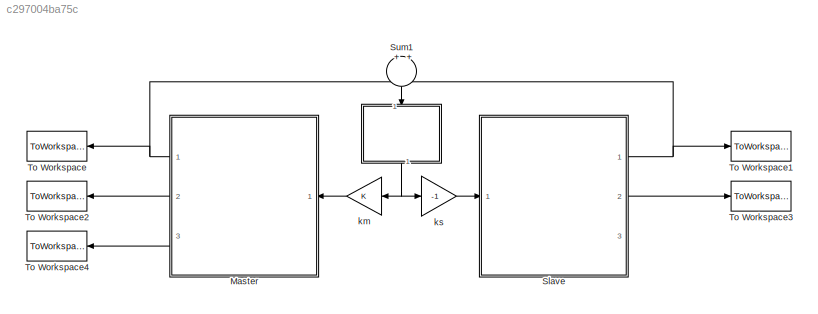
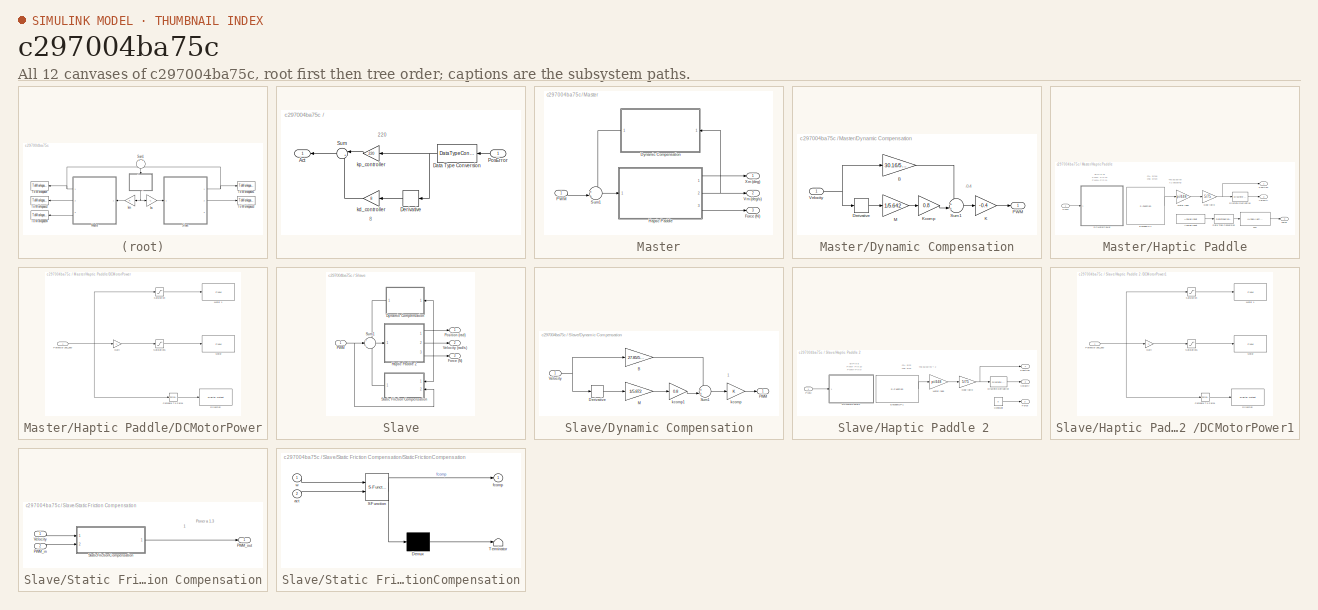
[diagram: thumbnail index - all 12 canvases of the model, root first then tree order]
MODEL slx_c297004ba75c
KIND model
CONFIG AbsTol = auto
CONFIG EnableMultiTasking = on
CONFIG FixedStep = 0.005
CONFIG MaxStep = auto
CONFIG MinStep = auto
CONFIG RelTol = 1e-3
CONFIG SampleTimeConstraint = Unconstrained
CONFIG Solver = FixedStepAuto
CONFIG SolverName = FixedStepAuto
CONFIG StartTime = 0.0
CONFIG StopTime = 5
BLOCK [SubSystem]  
  Ports = [1, 1]
  RequestExecContextInheritance = off
  Variant = off
BLOCK [Outport]  /Act
  IconDisplay = Port number
BLOCK [DataTypeConversion]  /Data Type Conversion
  RndMeth = Floor
  SaturateOnIntegerOverflow = off
BLOCK [Derivative]  /Derivative
BLOCK [Inport]  /PosError
  IconDisplay = Port number
BLOCK [Sum]  /Sum
  IconShape = round
  InputSameDT = off
  Inputs = |++
  OutDataTypeStr = Inherit: Inherit via internal rule
  Ports = [2, 1]
  SaturateOnIntegerOverflow = off
BLOCK [Gain]  /kd_controller
  Gain = 8
  OutDataTypeStr = Inherit: Inherit via internal rule
  ParamDataTypeStr = Inherit: Inherit via internal rule
  SaturateOnIntegerOverflow = off
BLOCK [Gain]  /kp_controller
  Gain = 220
  OutDataTypeStr = Inherit: Inherit via internal rule
  ParamDataTypeStr = Inherit: Inherit via internal rule
  SaturateOnIntegerOverflow = off
BLOCK [SubSystem] Master
  Ports = [1, 3]
  RequestExecContextInheritance = off
  Variant = off
BLOCK [SubSystem] Master/Dynamic Compensation
  Ports = [1, 1]
  RequestExecContextInheritance = off
  Variant = off
BLOCK [Gain] Master/Dynamic Compensation/B
  Gain = 30.16/5.642
  OutDataTypeStr = double
  ParamDataTypeStr = Inherit: Inherit via internal rule
  SaturateOnIntegerOverflow = off
BLOCK [Derivative] Master/Dynamic Compensation/Derivative
BLOCK [Gain] Master/Dynamic Compensation/K
  Gain = -0.4
  OutDataTypeStr = int16
  ParamDataTypeStr = Inherit: Inherit via internal rule
  SaturateOnIntegerOverflow = off
BLOCK [Gain] Master/Dynamic Compensation/Kcomp
  Gain = 0.8
  OutDataTypeStr = int16
  ParamDataTypeStr = Inherit: Inherit via internal rule
  SaturateOnIntegerOverflow = off
BLOCK [Gain] Master/Dynamic Compensation/M
  Gain = 1/5.642
  OutDataTypeStr = double
  ParamDataTypeStr = Inherit: Inherit via internal rule
  SaturateOnIntegerOverflow = off
BLOCK [Outport] Master/Dynamic Compensation/PWM
  IconDisplay = Port number
BLOCK [Sum] Master/Dynamic Compensation/Sum1
  IconShape = round
  InputSameDT = off
  Inputs = ++|
  OutDataTypeStr = Inherit: Inherit via internal rule
  Ports = [2, 1]
  SaturateOnIntegerOverflow = off
BLOCK [Inport] Master/Dynamic Compensation/Velocity
  IconDisplay = Port number
BLOCK [Outport] Master/Force (N)
  IconDisplay = Port number
  Port = 3
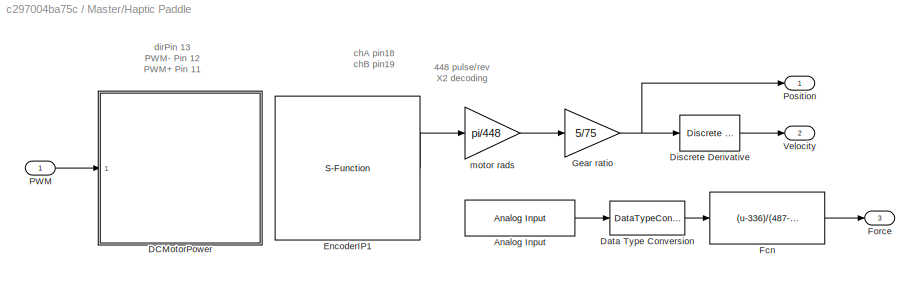
BLOCK [SubSystem] Master/Haptic Paddle
  Ports = [1, 3]
  RequestExecContextInheritance = off
  Variant = off
BLOCK [Reference] Master/Haptic Paddle/Analog Input  REF=arduinolib/Analog Input
  Ports = [0, 1]
  SourceBlock = arduinolib/Analog Input
  SourceProductBaseCode = ARDUINO
  SourceProductName = Simulink Support Package for Arduino Hardware
  SourceType = Arduino Analog Input
BLOCK [SubSystem] Master/Haptic Paddle/DCMotorPower
  Ports = [1]
  RTWFcnNameOpts = Use subsystem name
  RTWFileNameOpts = Use function name
  RTWSystemCode = Reusable function
  RequestExecContextInheritance = off
  Variant = off
BLOCK [Reference] Master/Haptic Paddle/DCMotorPower/Compare To Zero1  REF=simulink/Logic and Bit
Operations/Compare
To Zero
  Ports = [1, 1]
  SourceBlock = simulink/Logic and Bit\nOperations/Compare\nTo Zero
  SourceProductBaseCode = SL
  SourceProductName = Simulink
  SourceType = Compare To Zero
BLOCK [Reference] Master/Haptic Paddle/DCMotorPower/Direccion  REF=arduinolib/Digital Output
  Ports = [1]
  SourceBlock = arduinolib/Digital Output
  SourceProductBaseCode = ARDUINO
  SourceProductName = Simulink Support Package for Arduino Hardware
  SourceType = Arduino Digital Output
BLOCK [Gain] Master/Haptic Paddle/DCMotorPower/Gain
  Gain = -1
  OutDataTypeStr = Inherit: Inherit via internal rule
  ParamDataTypeStr = Inherit: Inherit via internal rule
  SaturateOnIntegerOverflow = off
BLOCK [Reference] Master/Haptic Paddle/DCMotorPower/Motor  REF=arduinolib/PWM
  Ports = [1]
  SourceBlock = arduinolib/PWM
  SourceProductBaseCode = ARDUINO
  SourceProductName = Simulink Support Package for Arduino Hardware
  SourceType = Arduino PWM
BLOCK [Reference] Master/Haptic Paddle/DCMotorPower/Motor 1  REF=arduinolib/PWM
  Ports = [1]
  SourceBlock = arduinolib/PWM
  SourceProductBaseCode = ARDUINO
  SourceProductName = Simulink Support Package for Arduino Hardware
  SourceType = Arduino PWM
BLOCK [Inport] Master/Haptic Paddle/DCMotorPower/Potencia(-255_255) 
  IconDisplay = Port number
  OutDataTypeStr = int16
  VarSizeSig = No
BLOCK [Saturate] Master/Haptic Paddle/DCMotorPower/Saturation
  InputPortMap = u0
  LowerLimit = 0
  Ports = [1, 1]
  UpperLimit = 255
BLOCK [Saturate] Master/Haptic Paddle/DCMotorPower/Saturation1
  InputPortMap = u0
  LowerLimit = 0
  Ports = [1, 1]
  UpperLimit = 255
BLOCK [DataTypeConversion] Master/Haptic Paddle/Data Type Conversion
  RndMeth = Floor
  SaturateOnIntegerOverflow = off
BLOCK [Reference] Master/Haptic Paddle/Discrete Derivative  REF=simulink/Discrete/Discrete Derivative
  Ports = [1, 1]
  SourceBlock = simulink/Discrete/Discrete Derivative
  SourceProductBaseCode = SL
  SourceProductName = Simulink
  SourceType = Discrete Derivative
BLOCK [S-Function] Master/Haptic Paddle/EncoderIP1
  CopyFcn = set_param(gcbh,'LinkStatus','none')
  EnableBusSupport = off
  FunctionName = encoder_code2
  InitFcn = try, set_param(gcb,'FunctionName','encoder_code2'), end
  OpenFcn = sfunctionwizard(gcbh)
  Parameters = uint8(1),uint8(18),uint8(19)
  Ports = [0, 1]
  PreSaveFcn = try, set_param(gcb,'FunctionName','encoder_code2'), end
  SFcnIsStateOwnerBlock = off
  SFunctionDeploymentMode = off
  SFunctionModules = encoder_code2_wrapper
BLOCK [Fcn] Master/Haptic Paddle/Fcn
  Expr = (u-336)/(487-336)*1.991
BLOCK [Outport] Master/Haptic Paddle/Force
  IconDisplay = Port number
  Port = 3
BLOCK [Gain] Master/Haptic Paddle/Gear ratio 
  Gain = 5/75
  OutDataTypeStr = Inherit: Inherit via internal rule
  ParamDataTypeStr = Inherit: Inherit via internal rule
  SaturateOnIntegerOverflow = off
BLOCK [Inport] Master/Haptic Paddle/PWM
  IconDisplay = Port number
BLOCK [Outport] Master/Haptic Paddle/Position
  IconDisplay = Port number
BLOCK [Outport] Master/Haptic Paddle/Velocity
  IconDisplay = Port number
  Port = 2
BLOCK [Gain] Master/Haptic Paddle/motor rads
  Gain = pi/448
  OutDataTypeStr = Inherit: Inherit via internal rule
  ParamDataTypeStr = Inherit: Inherit via internal rule
  SaturateOnIntegerOverflow = off
BLOCK [Inport] Master/PWM
  IconDisplay = Port number
  OutDataTypeStr = int16
BLOCK [Sum] Master/Sum1
  IconShape = round
  InputSameDT = off
  Inputs = ++|
  OutDataTypeStr = Inherit: Inherit via internal rule
  Ports = [2, 1]
  SaturateOnIntegerOverflow = off
BLOCK [Outport] Master/Vm (deg//s)
  IconDisplay = Port number
  Port = 2
BLOCK [Outport] Master/Xm (deg)
  IconDisplay = Port number
BLOCK [SubSystem] Slave
  Ports = [1, 3]
  RequestExecContextInheritance = off
  Variant = off
BLOCK [SubSystem] Slave/Dynamic Compensation
  Ports = [1, 1]
  RequestExecContextInheritance = off
  Variant = off
BLOCK [Gain] Slave/Dynamic Compensation/B
  Gain = 27.85/5.872
  OutDataTypeStr = double
  ParamDataTypeStr = Inherit: Inherit via internal rule
  SaturateOnIntegerOverflow = off
BLOCK [Derivative] Slave/Dynamic Compensation/Derivative
BLOCK [Gain] Slave/Dynamic Compensation/M
  Gain = 1/5.872
  OutDataTypeStr = double
  ParamDataTypeStr = Inherit: Inherit via internal rule
  SaturateOnIntegerOverflow = off
BLOCK [Outport] Slave/Dynamic Compensation/PWM 
  IconDisplay = Port number
BLOCK [Sum] Slave/Dynamic Compensation/Sum1
  IconShape = round
  InputSameDT = off
  Inputs = ++|
  OutDataTypeStr = Inherit: Inherit via internal rule
  Ports = [2, 1]
  SaturateOnIntegerOverflow = off
BLOCK [Inport] Slave/Dynamic Compensation/Velocity
  IconDisplay = Port number
BLOCK [Gain] Slave/Dynamic Compensation/kcomp
  OutDataTypeStr = int16
  ParamDataTypeStr = Inherit: Inherit via internal rule
  SaturateOnIntegerOverflow = off
BLOCK [Gain] Slave/Dynamic Compensation/kcomp1
  Gain = 0.8
  OutDataTypeStr = int16
  ParamDataTypeStr = Inherit: Inherit via internal rule
  SaturateOnIntegerOverflow = off
BLOCK [Outport] Slave/Force (N)
  IconDisplay = Port number
  Port = 3
BLOCK [SubSystem] Slave/Haptic Paddle 2 
  Ports = [1, 3]
  RequestExecContextInheritance = off
  Variant = off
BLOCK [Constant] Slave/Haptic Paddle 2 /Constant
  Value = 0
BLOCK [SubSystem] Slave/Haptic Paddle 2 /DCMotorPower1
  Ports = [1]
  RTWFcnNameOpts = Use subsystem name
  RTWFileNameOpts = Use function name
  RTWSystemCode = Reusable function
  RequestExecContextInheritance = off
  Variant = off
BLOCK [Reference] Slave/Haptic Paddle 2 /DCMotorPower1/Compare To Zero1  REF=simulink/Logic and Bit
Operations/Compare
To Zero
  Ports = [1, 1]
  SourceBlock = simulink/Logic and Bit\nOperations/Compare\nTo Zero
  SourceProductBaseCode = SL
  SourceProductName = Simulink
  SourceType = Compare To Zero
BLOCK [Reference] Slave/Haptic Paddle 2 /DCMotorPower1/Direccion  REF=arduinolib/Digital Output
  Ports = [1]
  SourceBlock = arduinolib/Digital Output
  SourceProductBaseCode = ARDUINO
  SourceProductName = Simulink Support Package for Arduino Hardware
  SourceType = Arduino Digital Output
BLOCK [Gain] Slave/Haptic Paddle 2 /DCMotorPower1/Gain
  Gain = -1
  OutDataTypeStr = Inherit: Inherit via internal rule
  ParamDataTypeStr = Inherit: Inherit via internal rule
  SaturateOnIntegerOverflow = off
BLOCK [Reference] Slave/Haptic Paddle 2 /DCMotorPower1/Motor  REF=arduinolib/PWM
  Ports = [1]
  SourceBlock = arduinolib/PWM
  SourceProductBaseCode = ARDUINO
  SourceProductName = Simulink Support Package for Arduino Hardware
  SourceType = Arduino PWM
BLOCK [Reference] Slave/Haptic Paddle 2 /DCMotorPower1/Motor 1  REF=arduinolib/PWM
  Ports = [1]
  SourceBlock = arduinolib/PWM
  SourceProductBaseCode = ARDUINO
  SourceProductName = Simulink Support Package for Arduino Hardware
  SourceType = Arduino PWM
BLOCK [Inport] Slave/Haptic Paddle 2 /DCMotorPower1/Potencia(-255_255) 
  IconDisplay = Port number
  OutDataTypeStr = int16
  VarSizeSig = No
BLOCK [Saturate] Slave/Haptic Paddle 2 /DCMotorPower1/Saturation
  InputPortMap = u0
  LowerLimit = 0
  Ports = [1, 1]
  UpperLimit = 255
BLOCK [Saturate] Slave/Haptic Paddle 2 /DCMotorPower1/Saturation1
  InputPortMap = u0
  LowerLimit = 0
  Ports = [1, 1]
  UpperLimit = 255
BLOCK [Reference] Slave/Haptic Paddle 2 /Discrete Derivative  REF=simulink/Discrete/Discrete Derivative
  Ports = [1, 1]
  SourceBlock = simulink/Discrete/Discrete Derivative
  SourceProductBaseCode = SL
  SourceProductName = Simulink
  SourceType = Discrete Derivative
BLOCK [S-Function] Slave/Haptic Paddle 2 /EncoderDP1
  CopyFcn = set_param(gcbh,'LinkStatus','none')
  EnableBusSupport = off
  FunctionName = encoder_code2
  InitFcn = try, set_param(gcb,'FunctionName','encoder_code2'), end
  OpenFcn = sfunctionwizard(gcbh)
  Parameters = uint8(0),uint8(2),uint8(3)
  Ports = [0, 1]
  PreSaveFcn = try, set_param(gcb,'FunctionName','encoder_code2'), end
  SFcnIsStateOwnerBlock = off
  SFunctionDeploymentMode = off
  SFunctionModules = encoder_code2_wrapper
BLOCK [Outport] Slave/Haptic Paddle 2 /Force
  IconDisplay = Port number
  Port = 3
BLOCK [Gain] Slave/Haptic Paddle 2 /Gear ratio 
  Gain = 5/75
  OutDataTypeStr = Inherit: Inherit via internal rule
  ParamDataTypeStr = Inherit: Inherit via internal rule
  SaturateOnIntegerOverflow = off
BLOCK [Gain] Slave/Haptic Paddle 2 /Motor rads
  Gain = pi/448
  OutDataTypeStr = Inherit: Inherit via internal rule
  ParamDataTypeStr = Inherit: Inherit via internal rule
  SaturateOnIntegerOverflow = off
BLOCK [Inport] Slave/Haptic Paddle 2 /PWM 
  IconDisplay = Port number
BLOCK [Outport] Slave/Haptic Paddle 2 /Position
  IconDisplay = Port number
BLOCK [Outport] Slave/Haptic Paddle 2 /Velocity
  IconDisplay = Port number
  Port = 2
BLOCK [Inport] Slave/PWM
  IconDisplay = Port number
BLOCK [Outport] Slave/Position (rad)
  IconDisplay = Port number
BLOCK [SubSystem] Slave/Static Friction Compensation
  Ports = [2, 1]
  RequestExecContextInheritance = off
  Variant = off
BLOCK [Inport] Slave/Static Friction Compensation/PWM_in
  IconDisplay = Port number
  Port = 2
BLOCK [Outport] Slave/Static Friction Compensation/PWM_out
  IconDisplay = Port number
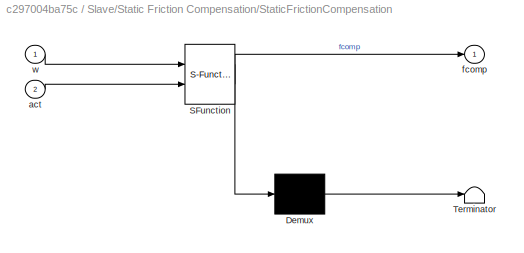
BLOCK [SubSystem] Slave/Static Friction Compensation/StaticFrictionCompensation
  ErrorFcn = Stateflow.Translate.translate
  PermitHierarchicalResolution = ExplicitOnly
  Ports = [2, 1]
  RequestExecContextInheritance = off
  SFBlockType = MATLAB Function
  TreatAsAtomicUnit = on
  Variant = off
BLOCK [Demux] Slave/Static Friction Compensation/StaticFrictionCompensation/ Demux 
  Outputs = 1
  Ports = [1, 1]
BLOCK [S-Function] Slave/Static Friction Compensation/StaticFrictionCompensation/ SFunction 
  EnableBusSupport = on
  FunctionName = sf_sfun
  PortCounts = [2 2]
  Ports = [2, 2]
  SFcnIsStateOwnerBlock = off
  SFunctionDeploymentMode = off
  Tag = Stateflow S-Function BilateralPaper 1
BLOCK [Terminator] Slave/Static Friction Compensation/StaticFrictionCompensation/ Terminator 
BLOCK [Inport] Slave/Static Friction Compensation/StaticFrictionCompensation/act
  IconDisplay = Port number
  Port = 2
BLOCK [Outport] Slave/Static Friction Compensation/StaticFrictionCompensation/fcomp
  IconDisplay = Port number
BLOCK [Inport] Slave/Static Friction Compensation/StaticFrictionCompensation/w
  IconDisplay = Port number
BLOCK [Inport] Slave/Static Friction Compensation/Velocity
  IconDisplay = Port number
BLOCK [Sum] Slave/Sum1
  IconShape = round
  InputSameDT = off
  Inputs = +|+|+
  OutDataTypeStr = Inherit: Inherit via internal rule
  Ports = [3, 1]
  SaturateOnIntegerOverflow = off
BLOCK [Outport] Slave/Velocity (rad//s)
  IconDisplay = Port number
  Port = 2
BLOCK [Sum] Sum1
  IconShape = round
  InputSameDT = off
  Inputs = +|+
  OutDataTypeStr = Inherit: Inherit via internal rule
  Ports = [2, 1]
  SaturateOnIntegerOverflow = off
BLOCK [ToWorkspace] To Workspace
  FixptAsFi = on
  MaxDataPoints = inf
  Ports = [1]
  SampleTime = -1
  Save2DSignal = 3-D array (concatenate along third dimension)
  SaveFormat = Structure With Time
  VariableName = Xm
BLOCK [ToWorkspace] To Workspace1
  FixptAsFi = on
  MaxDataPoints = inf
  Ports = [1]
  SampleTime = -1
  Save2DSignal = 3-D array (concatenate along third dimension)
  SaveFormat = Structure With Time
  VariableName = Xs
BLOCK [ToWorkspace] To Workspace2
  FixptAsFi = on
  MaxDataPoints = inf
  Ports = [1]
  SampleTime = -1
  Save2DSignal = 3-D array (concatenate along third dimension)
  SaveFormat = Structure With Time
  VariableName = Vm
BLOCK [ToWorkspace] To Workspace3
  FixptAsFi = on
  MaxDataPoints = inf
  Ports = [1]
  SampleTime = -1
  Save2DSignal = 3-D array (concatenate along third dimension)
  SaveFormat = Structure With Time
  VariableName = Vs
BLOCK [ToWorkspace] To Workspace4
  FixptAsFi = on
  MaxDataPoints = inf
  Ports = [1]
  SampleTime = -1
  Save2DSignal = 3-D array (concatenate along third dimension)
  SaveFormat = Structure With Time
  VariableName = Fm
BLOCK [Gain] km
  OutDataTypeStr = int16
  ParamDataTypeStr = Inherit: Inherit via internal rule
  SaturateOnIntegerOverflow = off
BLOCK [Gain] ks
  Gain = -1
  OutDataTypeStr = int16
  ParamDataTypeStr = Inherit: Inherit via internal rule
  SaturateOnIntegerOverflow = off
ANNOTATION  : 220
ANNOTATION  : 8
ANNOTATION Master/Dynamic Compensation: -0.4
ANNOTATION Master/Haptic Paddle: 448 pulse/rev X2 decoding
ANNOTATION Master/Haptic Paddle: chA pin18 chB pin19
ANNOTATION Master/Haptic Paddle: dirPin 13 PWM- Pin 12 PWM+ Pin 11
ANNOTATION Slave/Dynamic Compensation: 1
ANNOTATION Slave/Haptic Paddle 2 : 448 pulse/rev * 2
ANNOTATION Slave/Haptic Paddle 2 : chA pin2 chB pin3
ANNOTATION Slave/Haptic Paddle 2 : dirPin 8 PWM- Pin 10 PWM+ Pin 9
ANNOTATION Slave/Static Friction Compensation: 1
ANNOTATION Slave/Static Friction Compensation: Poner a 1.3
NET  /Data Type Conversion:1 ->  /Derivative:1,  /kp_controller:1
LINE  /Derivative:1 ->  /kd_controller:1
LINE  /PosError:1 ->  /Data Type Conversion:1
LINE  /Sum:1 ->  /Act:1
LINE  /kd_controller:1 ->  /Sum:2
LINE  /kp_controller:1 ->  /Sum:1
NET  :1 -> km:1, ks:1
LINE Master/Dynamic Compensation/B:1 -> Master/Dynamic Compensation/Sum1:1
LINE Master/Dynamic Compensation/Derivative:1 -> Master/Dynamic Compensation/M:1
LINE Master/Dynamic Compensation/K:1 -> Master/Dynamic Compensation/PWM:1
LINE Master/Dynamic Compensation/Kcomp:1 -> Master/Dynamic Compensation/Sum1:2
LINE Master/Dynamic Compensation/M:1 -> Master/Dynamic Compensation/Kcomp:1
LINE Master/Dynamic Compensation/Sum1:1 -> Master/Dynamic Compensation/K:1
NET Master/Dynamic Compensation/Velocity:1 -> Master/Dynamic Compensation/B:1, Master/Dynamic Compensation/Derivative:1
LINE Master/Dynamic Compensation:1 -> Master/Sum1:1
LINE Master/Haptic Paddle/Analog Input:1 -> Master/Haptic Paddle/Data Type Conversion:1
LINE Master/Haptic Paddle/DCMotorPower/Compare To Zero1:1 -> Master/Haptic Paddle/DCMotorPower/Direccion:1
LINE Master/Haptic Paddle/DCMotorPower/Gain:1 -> Master/Haptic Paddle/DCMotorPower/Saturation1:1
NET Master/Haptic Paddle/DCMotorPower/Potencia(-255_255) :1 -> Master/Haptic Paddle/DCMotorPower/Compare To Zero1:1, Master/Haptic Paddle/DCMotorPower/Gain:1, Master/Haptic Paddle/DCMotorPower/Saturation:1
LINE Master/Haptic Paddle/DCMotorPower/Saturation1:1 -> Master/Haptic Paddle/DCMotorPower/Motor:1
LINE Master/Haptic Paddle/DCMotorPower/Saturation:1 -> Master/Haptic Paddle/DCMotorPower/Motor 1:1
LINE Master/Haptic Paddle/Data Type Conversion:1 -> Master/Haptic Paddle/Fcn:1
LINE Master/Haptic Paddle/Discrete Derivative:1 -> Master/Haptic Paddle/Velocity:1
LINE Master/Haptic Paddle/EncoderIP1:1 -> Master/Haptic Paddle/motor rads:1
LINE Master/Haptic Paddle/Fcn:1 -> Master/Haptic Paddle/Force:1
NET Master/Haptic Paddle/Gear ratio :1 -> Master/Haptic Paddle/Discrete Derivative:1, Master/Haptic Paddle/Position:1
LINE Master/Haptic Paddle/PWM:1 -> Master/Haptic Paddle/DCMotorPower:1
LINE Master/Haptic Paddle/motor rads:1 -> Master/Haptic Paddle/Gear ratio :1
LINE Master/Haptic Paddle:1 -> Master/Xm (deg):1
NET Master/Haptic Paddle:2 -> Master/Dynamic Compensation:1, Master/Vm (deg//s):1
LINE Master/Haptic Paddle:3 -> Master/Force (N):1
LINE Master/PWM:1 -> Master/Sum1:2
LINE Master/Sum1:1 -> Master/Haptic Paddle:1
NET Master:1 -> Sum1:1, To Workspace:1
LINE Master:2 -> To Workspace2:1
LINE Master:3 -> To Workspace4:1
LINE Slave/Dynamic Compensation/B:1 -> Slave/Dynamic Compensation/Sum1:1
LINE Slave/Dynamic Compensation/Derivative:1 -> Slave/Dynamic Compensation/M:1
LINE Slave/Dynamic Compensation/M:1 -> Slave/Dynamic Compensation/kcomp1:1
LINE Slave/Dynamic Compensation/Sum1:1 -> Slave/Dynamic Compensation/kcomp:1
NET Slave/Dynamic Compensation/Velocity:1 -> Slave/Dynamic Compensation/B:1, Slave/Dynamic Compensation/Derivative:1
LINE Slave/Dynamic Compensation/kcomp1:1 -> Slave/Dynamic Compensation/Sum1:2
LINE Slave/Dynamic Compensation/kcomp:1 -> Slave/Dynamic Compensation/PWM :1
LINE Slave/Dynamic Compensation:1 -> Slave/Sum1:1
LINE Slave/Haptic Paddle 2 /Constant:1 -> Slave/Haptic Paddle 2 /Force:1
LINE Slave/Haptic Paddle 2 /DCMotorPower1/Compare To Zero1:1 -> Slave/Haptic Paddle 2 /DCMotorPower1/Direccion:1
LINE Slave/Haptic Paddle 2 /DCMotorPower1/Gain:1 -> Slave/Haptic Paddle 2 /DCMotorPower1/Saturation1:1
NET Slave/Haptic Paddle 2 /DCMotorPower1/Potencia(-255_255) :1 -> Slave/Haptic Paddle 2 /DCMotorPower1/Compare To Zero1:1, Slave/Haptic Paddle 2 /DCMotorPower1/Gain:1, Slave/Haptic Paddle 2 /DCMotorPower1/Saturation:1
LINE Slave/Haptic Paddle 2 /DCMotorPower1/Saturation1:1 -> Slave/Haptic Paddle 2 /DCMotorPower1/Motor:1
LINE Slave/Haptic Paddle 2 /DCMotorPower1/Saturation:1 -> Slave/Haptic Paddle 2 /DCMotorPower1/Motor 1:1
LINE Slave/Haptic Paddle 2 /Discrete Derivative:1 -> Slave/Haptic Paddle 2 /Velocity:1
LINE Slave/Haptic Paddle 2 /EncoderDP1:1 -> Slave/Haptic Paddle 2 /Motor rads:1
NET Slave/Haptic Paddle 2 /Gear ratio :1 -> Slave/Haptic Paddle 2 /Discrete Derivative:1, Slave/Haptic Paddle 2 /Position:1
LINE Slave/Haptic Paddle 2 /Motor rads:1 -> Slave/Haptic Paddle 2 /Gear ratio :1
LINE Slave/Haptic Paddle 2 /PWM :1 -> Slave/Haptic Paddle 2 /DCMotorPower1:1
LINE Slave/Haptic Paddle 2 :1 -> Slave/Position (rad):1
NET Slave/Haptic Paddle 2 :2 -> Slave/Dynamic Compensation:1, Slave/Static Friction Compensation:1, Slave/Velocity (rad//s):1
LINE Slave/Haptic Paddle 2 :3 -> Slave/Force (N):1
NET Slave/PWM:1 -> Slave/Static Friction Compensation:2, Slave/Sum1:2
LINE Slave/Static Friction Compensation/PWM_in:1 -> Slave/Static Friction Compensation/StaticFrictionCompensation:2
LINE Slave/Static Friction Compensation/StaticFrictionCompensation:1 -> Slave/Static Friction Compensation/PWM_out:1
LINE Slave/Static Friction Compensation/Velocity:1 -> Slave/Static Friction Compensation/StaticFrictionCompensation:1
LINE Slave/Static Friction Compensation:1 -> Slave/Sum1:3
LINE Slave/Sum1:1 -> Slave/Haptic Paddle 2 :1
NET Slave:1 -> Sum1:2, To Workspace1:1
LINE Slave:2 -> To Workspace3:1
LINE Sum1:1 ->  :1
LINE km:1 -> Master:1
LINE ks:1 -> Slave:1
note: NET lines group one-source signal fan-out (src -> all destinations, sorted); 1:1 wires keep LINE
CHART Slave/Static Friction Compensation/StaticFrictionCompensation states=1 transitions=1
  STATE_LABEL 'eML_blk_kernel()'
  STATE_LABEL "SCRIPT:\nfunction fcomp = StaticCompensation(w, act)\n    %Static Friction Estimation\n    fs = 20;\n    %We've to consider the velocity's noise\n    %If exist an error and the velocity is ~0, but the actuation signal is\n    %<60, which could mean there is a contact on the other haptic\n    if (abs(act)>0)&&((abs(w)<=0.1))&&(abs(act)<=fs) \n        fcomp = fs*sign(act);\n    else\n        fcomp = int16(0);...<+27ch>"
